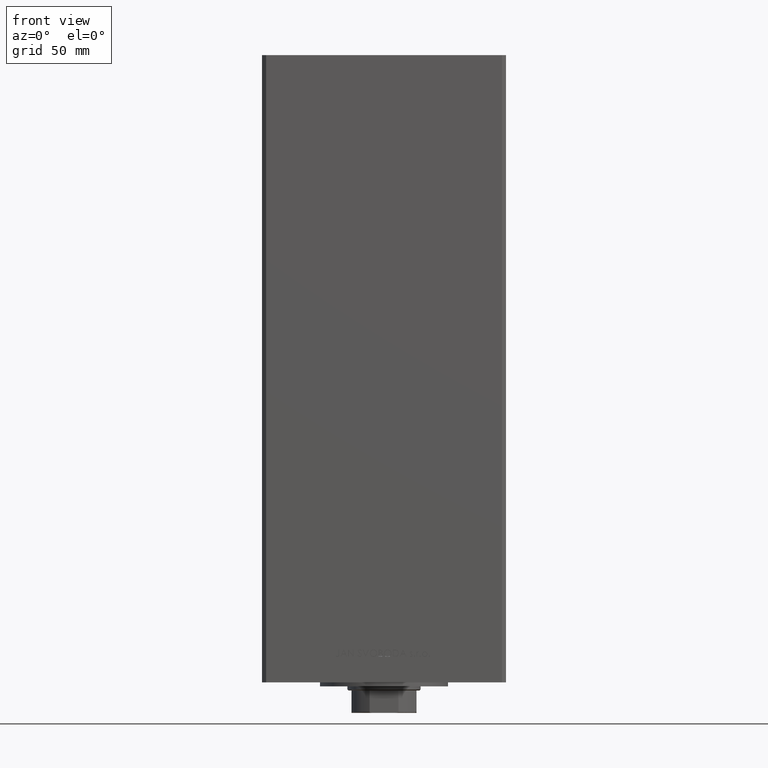
[diagram: clean part render]
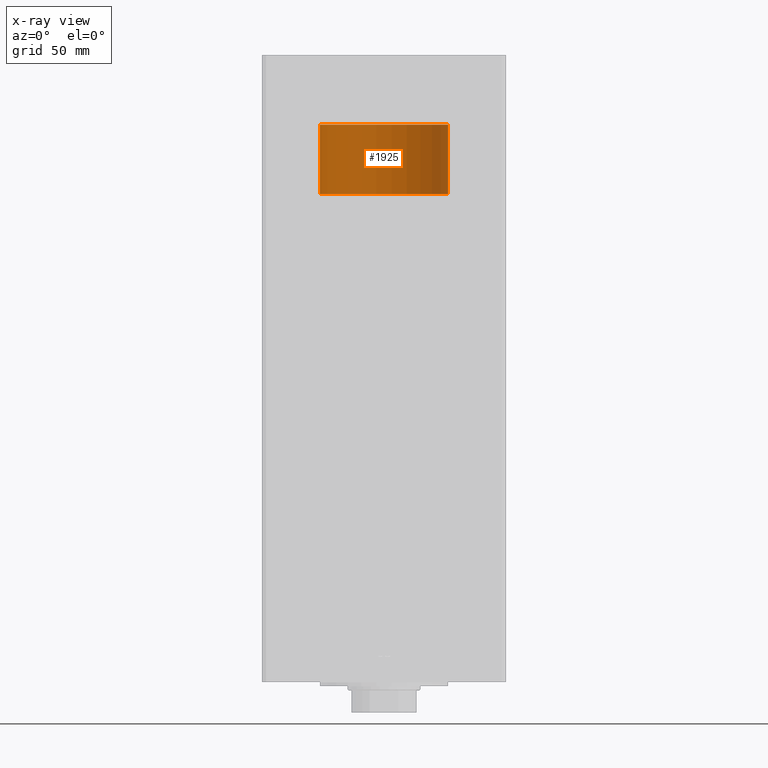
[diagram: x-ray — body ghosted, one internal face saturated and labeled with its STEP entity id]
A machine part, front view, then the same camera in x-ray: the body is ghosted and one INTERNAL B-rep face — a face not visible from any outside direction — is saturated and labeled: STEP entity #1925.
In plain terms, the highlighted cylindrical surface (partial cylindrical patch) has radius 31.5 mm, axis along (0, -0, 1).
Its self-contained STEP definition (entity closure, byte-faithful):
#562 = VECTOR ( 'NONE', #15487, 1000.000000000000000 ) ;
#1050 = LINE ( 'NONE', #45817, #562 ) ;
#1925 = ADVANCED_FACE ( 'NONE', ( #27006 ), #39147, .T. ) ;
#2379 = DIRECTION ( 'NONE',  ( -0.000000000000000000, -0.000000000000000000, -1.000000000000000000 ) ) ;
#2584 = EDGE_CURVE ( 'NONE', #40391, #14632, #1050, .T. ) ;
#2849 = ORIENTED_EDGE ( 'NONE', *, *, #27286, .F. ) ;
#6525 = DIRECTION ( 'NONE',  ( 1.000000000000000000, 0.000000000000000000, 0.000000000000000000 ) ) ;
#7444 = ORIENTED_EDGE ( 'NONE', *, *, #40463, .T. ) ;
#7903 = EDGE_LOOP ( 'NONE', ( #2849, #7444, #18786, #39786 ) ) ;
#9640 = CIRCLE ( 'NONE', #37439, 31.50000000000000000 ) ;
#10067 = LINE ( 'NONE', #17772, #25010 ) ;
#10159 = CARTESIAN_POINT ( 'NONE',  ( 0.000000000000000000, 0.000000000000000000, 0.000000000000000000 ) ) ;
#11651 = AXIS2_PLACEMENT_3D ( 'NONE', #35172, #19768, #12075 ) ;
#12075 = DIRECTION ( 'NONE',  ( -1.000000000000000000, 0.000000000000000000, 0.000000000000000000 ) ) ;
#14632 = VERTEX_POINT ( 'NONE', #16585 ) ;
#15487 = DIRECTION ( 'NONE',  ( -0.000000000000000000, -0.000000000000000000, -1.000000000000000000 ) ) ;
#16585 = CARTESIAN_POINT ( 'NONE',  ( -31.50000000000000000, 0.000000000000000000, 0.000000000000000000 ) ) ;
#17772 = CARTESIAN_POINT ( 'NONE',  ( 31.50000000000000000, 3.857637417314162689E-15, 34.25000000000000000 ) ) ;
#18786 = ORIENTED_EDGE ( 'NONE', *, *, #43551, .T. ) ;
#19768 = DIRECTION ( 'NONE',  ( -0.000000000000000000, -0.000000000000000000, -1.000000000000000000 ) ) ;
#25010 = VECTOR ( 'NONE', #2379, 1000.000000000000000 ) ;
#25037 = CARTESIAN_POINT ( 'NONE',  ( 31.50000000000000000, 3.857637417314162689E-15, 0.000000000000000000 ) ) ;
#25113 = CIRCLE ( 'NONE', #33050, 31.50000000000000000 ) ;
#27006 = FACE_OUTER_BOUND ( 'NONE', #7903, .T. ) ;
#27286 = EDGE_CURVE ( 'NONE', #39964, #40391, #9640, .T. ) ;
#27492 = CARTESIAN_POINT ( 'NONE',  ( -31.50000000000000000, 0.000000000000000000, 34.25000000000000000 ) ) ;
#28895 = DIRECTION ( 'NONE',  ( 0.000000000000000000, 0.000000000000000000, 1.000000000000000000 ) ) ;
#33022 = DIRECTION ( 'NONE',  ( 1.000000000000000000, 0.000000000000000000, 0.000000000000000000 ) ) ;
#33050 = AXIS2_PLACEMENT_3D ( 'NONE', #10159, #43979, #33022 ) ;
#35016 = VERTEX_POINT ( 'NONE', #25037 ) ;
#35172 = CARTESIAN_POINT ( 'NONE',  ( 0.000000000000000000, 0.000000000000000000, 34.25000000000000000 ) ) ;
#37439 = AXIS2_PLACEMENT_3D ( 'NONE', #48528, #28895, #6525 ) ;
#39147 = CYLINDRICAL_SURFACE ( 'NONE', #11651, 31.50000000000000000 ) ;
#39786 = ORIENTED_EDGE ( 'NONE', *, *, #2584, .F. ) ;
#39964 = VERTEX_POINT ( 'NONE', #46686 ) ;
#40391 = VERTEX_POINT ( 'NONE', #27492 ) ;
#40463 = EDGE_CURVE ( 'NONE', #39964, #35016, #10067, .T. ) ;
#43551 = EDGE_CURVE ( 'NONE', #35016, #14632, #25113, .T. ) ;
#43979 = DIRECTION ( 'NONE',  ( 0.000000000000000000, 0.000000000000000000, 1.000000000000000000 ) ) ;
#45817 = CARTESIAN_POINT ( 'NONE',  ( -31.50000000000000000, 0.000000000000000000, 34.25000000000000000 ) ) ;
#46686 = CARTESIAN_POINT ( 'NONE',  ( 31.50000000000000000, 3.857637417314162689E-15, 34.25000000000000000 ) ) ;
#48528 = CARTESIAN_POINT ( 'NONE',  ( 0.000000000000000000, 0.000000000000000000, 34.25000000000000000 ) ) ;